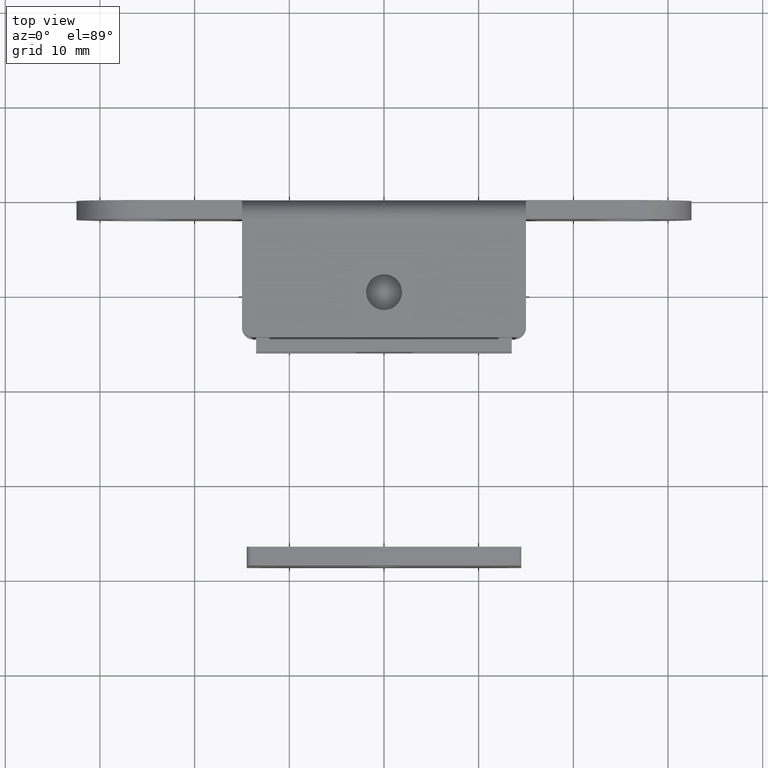
[diagram: clean part render]
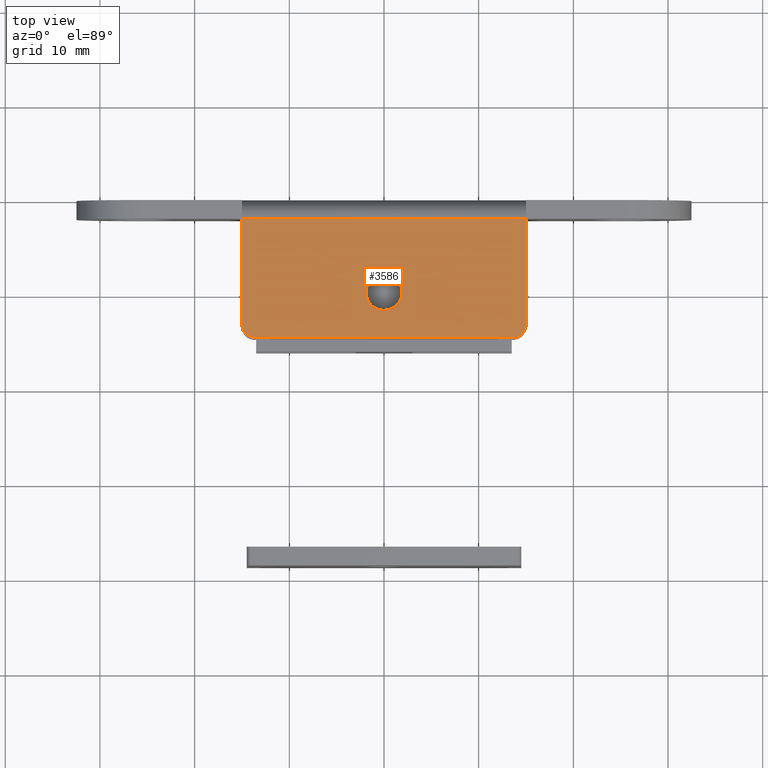
[diagram: same view with one face highlighted and labeled with its STEP entity id]
A machine part, top view. The second image highlights one B-rep face of the part: STEP entity #3586.
In plain terms, the highlighted face is a freeform B-spline surface patch.
Its self-contained STEP definition (entity closure, byte-faithful):
#1926=CARTESIAN_POINT('',(-0.235843204208230,-7.864694193763571,7.0));
#1927=VERTEX_POINT('',#1926);
#1933=CARTESIAN_POINT('',(-1.899999999999999,-9.750000000000000,7.0));
#1934=VERTEX_POINT('',#1933);
#1935=CARTESIAN_POINT('',(-0.235843204208230,-7.864694193763571,7.000000000000001));
#1936=CARTESIAN_POINT('',(-1.899999999999998,-8.072872660174573,7.0));
#1937=CARTESIAN_POINT('',(-1.899999999999999,-9.750000000000000,7.0));
#1945=(BOUNDED_CURVE()B_SPLINE_CURVE(2,(#1935,#1936,#1937),.UNSPECIFIED.,.F.,.U.)B_SPLINE_CURVE_WITH_KNOTS((3,3),(0.271473929016600,0.500000000000000),.UNSPECIFIED.)CURVE()GEOMETRIC_REPRESENTATION_ITEM()RATIONAL_B_SPLINE_CURVE((0.954005430185646,0.732265053947522,1.0))REPRESENTATION_ITEM(''));
#1946=EDGE_CURVE('',#1927,#1934,#1945,.T.);
#1948=CARTESIAN_POINT('',(0.016580417801260,-11.649927653818830,7.0));
#1949=VERTEX_POINT('',#1948);
#1950=CARTESIAN_POINT('',(-1.899999999999999,-9.750000000000000,7.0));
#1951=CARTESIAN_POINT('',(-1.899999999999998,-11.650000000000000,6.999999999999999));
#1952=CARTESIAN_POINT('',(1.193991E-015,-11.650000000000000,7.0));
#1953=CARTESIAN_POINT('',(0.008290366913698,-11.649999999999999,7.0));
#1954=CARTESIAN_POINT('',(0.016580417801260,-11.649927653818830,7.0));
#1962=(BOUNDED_CURVE()B_SPLINE_CURVE(2,(#1950,#1951,#1952,#1953,#1954),.UNSPECIFIED.,.F.,.U.)B_SPLINE_CURVE_WITH_KNOTS((3,2,3),(0.500000000000000,0.750000000000000,0.751539894400690),.UNSPECIFIED.)CURVE()GEOMETRIC_REPRESENTATION_ITEM()RATIONAL_B_SPLINE_CURVE((1.0,0.707106781186547,1.0,0.998195901489397,0.996414027948352))REPRESENTATION_ITEM(''));
#1963=EDGE_CURVE('',#1934,#1949,#1962,.T.);
#2043=CARTESIAN_POINT('',(1.900000000000001,-9.750000000000000,7.0));
#2044=VERTEX_POINT('',#2043);
#2045=CARTESIAN_POINT('',(0.016580417801260,-11.649927653818837,7.000000000000001));
#2046=CARTESIAN_POINT('',(1.900000000000000,-11.633491299427865,7.0));
#2047=CARTESIAN_POINT('',(1.900000000000001,-9.750000000000000,7.0));
#2055=(BOUNDED_CURVE()B_SPLINE_CURVE(2,(#2045,#2046,#2047),.UNSPECIFIED.,.F.,.U.)B_SPLINE_CURVE_WITH_KNOTS((3,3),(0.751539894400691,1.0),.UNSPECIFIED.)CURVE()GEOMETRIC_REPRESENTATION_ITEM()RATIONAL_B_SPLINE_CURVE((0.996414027948349,0.708910879697152,1.0))REPRESENTATION_ITEM(''));
#2056=EDGE_CURVE('',#1949,#2044,#2055,.T.);
#2058=CARTESIAN_POINT('',(1.900000000000001,-9.750000000000000,7.0));
#2059=CARTESIAN_POINT('',(1.900000000000001,-7.849999999999999,6.999999999999999));
#2060=CARTESIAN_POINT('',(1.193991E-015,-7.850000000000000,7.0));
#2061=CARTESIAN_POINT('',(-0.118379362573196,-7.850000000000000,7.0));
#2062=CARTESIAN_POINT('',(-0.235843204208230,-7.864694193763571,7.000000000000001));
#2070=(BOUNDED_CURVE()B_SPLINE_CURVE(2,(#2058,#2059,#2060,#2061,#2062),.UNSPECIFIED.,.F.,.U.)B_SPLINE_CURVE_WITH_KNOTS((3,2,3),(0.0,0.250000000000000,0.271473929016600),.UNSPECIFIED.)CURVE()GEOMETRIC_REPRESENTATION_ITEM()RATIONAL_B_SPLINE_CURVE((1.0,0.707106781186547,1.0,0.974841727239025,0.954005430185646))REPRESENTATION_ITEM(''));
#2071=EDGE_CURVE('',#2044,#1927,#2070,.T.);
#2664=CARTESIAN_POINT('',(15.0,-2.0,7.0));
#2665=VERTEX_POINT('',#2664);
#2686=CARTESIAN_POINT('',(-15.0,-2.0,7.0));
#2687=VERTEX_POINT('',#2686);
#2701=CARTESIAN_POINT('',(15.0,-2.0,7.0));
#2702=CARTESIAN_POINT('',(-15.0,-2.0,7.0));
#2703=QUASI_UNIFORM_CURVE('',1,(#2701,#2702),.UNSPECIFIED.,.F.,.U.);
#2704=EDGE_CURVE('',#2665,#2687,#2703,.T.);
#3246=CARTESIAN_POINT('',(-15.0,-13.249999803650240,7.0));
#3247=VERTEX_POINT('',#3246);
#3248=CARTESIAN_POINT('',(-15.0,-13.249999803650240,7.0));
#3249=CARTESIAN_POINT('',(-15.0,-2.0,7.0));
#3250=QUASI_UNIFORM_CURVE('',1,(#3248,#3249),.UNSPECIFIED.,.F.,.U.);
#3251=EDGE_CURVE('',#3247,#2687,#3250,.T.);
#3278=CARTESIAN_POINT('',(-13.750000000000000,-14.499999999999799,7.0));
#3279=VERTEX_POINT('',#3278);
#3280=CARTESIAN_POINT('',(-14.999999999999989,-13.249999803650240,7.0));
#3281=CARTESIAN_POINT('',(-15.000000081330651,-13.767766814126057,7.000000000000001));
#3282=CARTESIAN_POINT('',(-14.633883545903240,-14.133883407062930,7.0));
#3283=CARTESIAN_POINT('',(-14.267767010475826,-14.499999999999797,7.000000000000001));
#3284=CARTESIAN_POINT('',(-13.750000000000000,-14.499999999999799,7.0));
#3292=(BOUNDED_CURVE()B_SPLINE_CURVE(2,(#3280,#3281,#3282,#3283,#3284),.UNSPECIFIED.,.F.,.U.)B_SPLINE_CURVE_WITH_KNOTS((3,2,3),(0.0,0.500000000000000,1.0),.UNSPECIFIED.)CURVE()GEOMETRIC_REPRESENTATION_ITEM()RATIONAL_B_SPLINE_CURVE((1.0,0.923879517483341,1.0,0.923879517483341,1.0))REPRESENTATION_ITEM(''));
#3293=EDGE_CURVE('',#3247,#3279,#3292,.T.);
#3310=CARTESIAN_POINT('',(13.749999934550139,-14.499999999999799,7.0));
#3311=VERTEX_POINT('',#3310);
#3312=CARTESIAN_POINT('',(13.749999934550139,-14.499999999999799,7.0));
#3313=CARTESIAN_POINT('',(-13.750000000000000,-14.499999999999799,7.0));
#3314=QUASI_UNIFORM_CURVE('',1,(#3312,#3313),.UNSPECIFIED.,.F.,.U.);
#3315=EDGE_CURVE('',#3311,#3279,#3314,.T.);
#3341=CARTESIAN_POINT('',(15.0,-13.249999999999799,7.0));
#3342=VERTEX_POINT('',#3341);
#3343=CARTESIAN_POINT('',(13.749999934550139,-14.499999999999799,7.0));
#3344=CARTESIAN_POINT('',(14.267766906686330,-14.500000027110024,7.0));
#3345=CARTESIAN_POINT('',(14.633883453343159,-14.133883499623010,7.0));
#3346=CARTESIAN_POINT('',(15.000000000000002,-13.767766972135997,7.0));
#3347=CARTESIAN_POINT('',(15.0,-13.249999999999799,7.0));
#3355=(BOUNDED_CURVE()B_SPLINE_CURVE(2,(#3343,#3344,#3345,#3346,#3347),.UNSPECIFIED.,.F.,.U.)B_SPLINE_CURVE_WITH_KNOTS((3,2,3),(0.0,0.500000000000000,1.0),.UNSPECIFIED.)CURVE()GEOMETRIC_REPRESENTATION_ITEM()RATIONAL_B_SPLINE_CURVE((1.0,0.923879527501971,1.0,0.923879527501971,1.0))REPRESENTATION_ITEM(''));
#3356=EDGE_CURVE('',#3311,#3342,#3355,.T.);
#3375=CARTESIAN_POINT('',(15.0,-2.0,7.0));
#3376=CARTESIAN_POINT('',(15.0,-13.249999999999799,7.0));
#3377=QUASI_UNIFORM_CURVE('',1,(#3375,#3376),.UNSPECIFIED.,.F.,.U.);
#3378=EDGE_CURVE('',#2665,#3342,#3377,.T.);
#3567=CARTESIAN_POINT('',(16.498499941854181,-15.124374975772360,7.0));
#3568=CARTESIAN_POINT('',(-16.498500746516889,-15.124374975772360,7.0));
#3569=CARTESIAN_POINT('',(16.498499941854181,-1.375624688951309,7.0));
#3570=CARTESIAN_POINT('',(-16.498500746516889,-1.375624688951309,7.0));
#3571=B_SPLINE_SURFACE_WITH_KNOTS('',1,1,((#3567,#3569),(#3568,#3570)),.UNSPECIFIED.,.F.,.F.,.U.,(2,2),(2,2),(0.0,32.997000688371060),(0.0,13.748750286821060),.UNSPECIFIED.);
#3572=ORIENTED_EDGE('',*,*,#3378,.F.);
#3573=ORIENTED_EDGE('',*,*,#2704,.T.);
#3574=ORIENTED_EDGE('',*,*,#3251,.F.);
#3575=ORIENTED_EDGE('',*,*,#3293,.T.);
#3576=ORIENTED_EDGE('',*,*,#3315,.F.);
#3577=ORIENTED_EDGE('',*,*,#3356,.T.);
#3578=EDGE_LOOP('',(#3572,#3573,#3574,#3575,#3576,#3577));
#3579=FACE_OUTER_BOUND('',#3578,.T.);
#3580=ORIENTED_EDGE('',*,*,#1963,.F.);
#3581=ORIENTED_EDGE('',*,*,#1946,.F.);
#3582=ORIENTED_EDGE('',*,*,#2071,.F.);
#3583=ORIENTED_EDGE('',*,*,#2056,.F.);
#3584=EDGE_LOOP('',(#3580,#3581,#3582,#3583));
#3585=FACE_BOUND('',#3584,.T.);
#3586=ADVANCED_FACE('',(#3579,#3585),#3571,.F.);